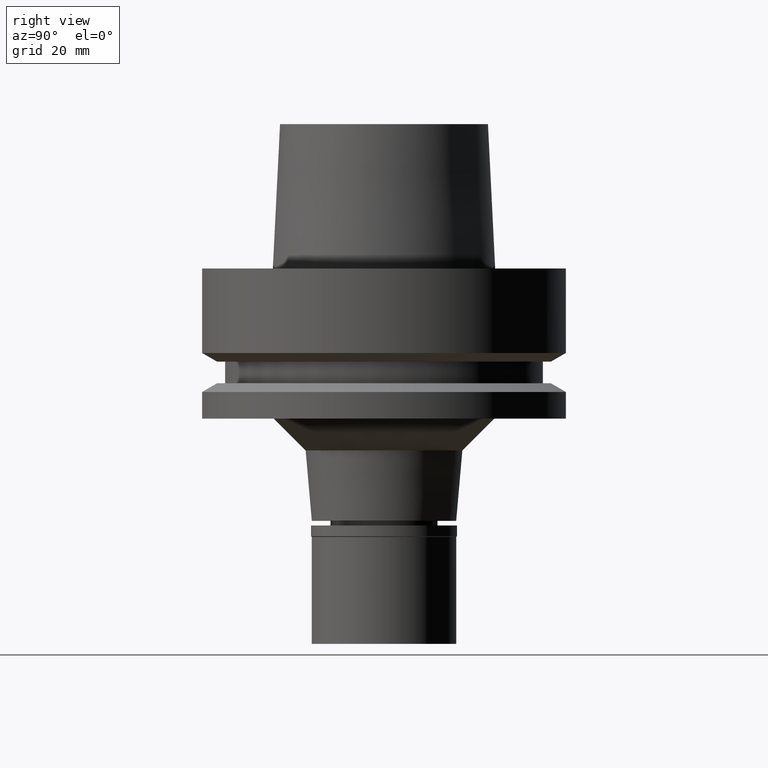
[diagram: clean part render]
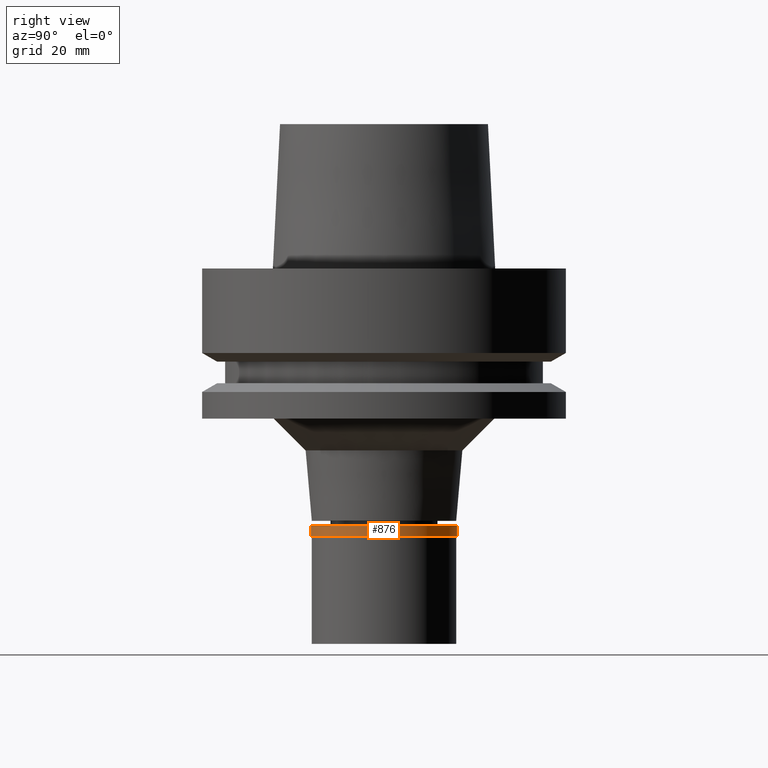
[diagram: same view with one face highlighted and labeled with its STEP entity id]
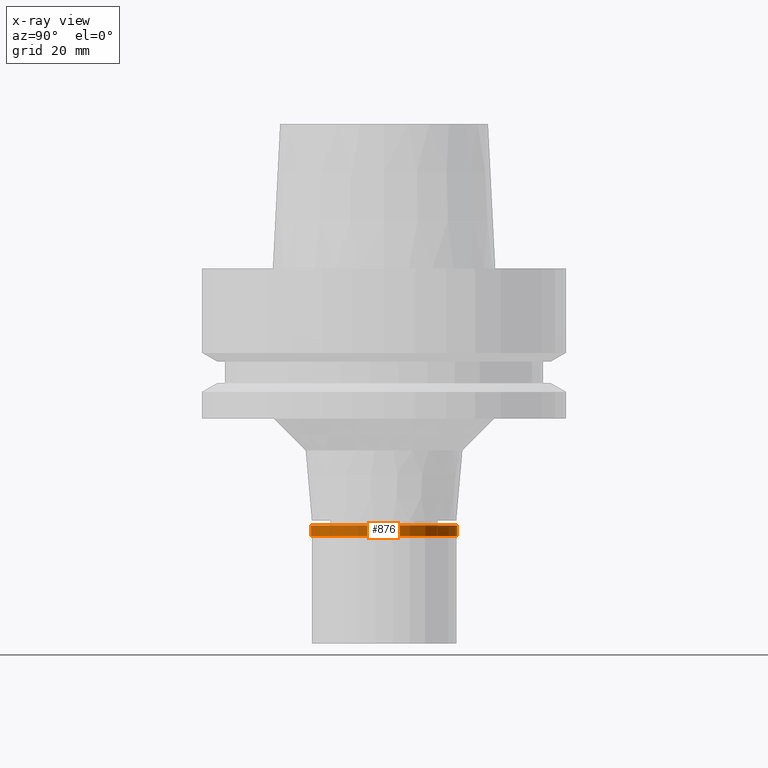
[diagram: x-ray of the same camera — body ghosted, the highlighted face saturated]
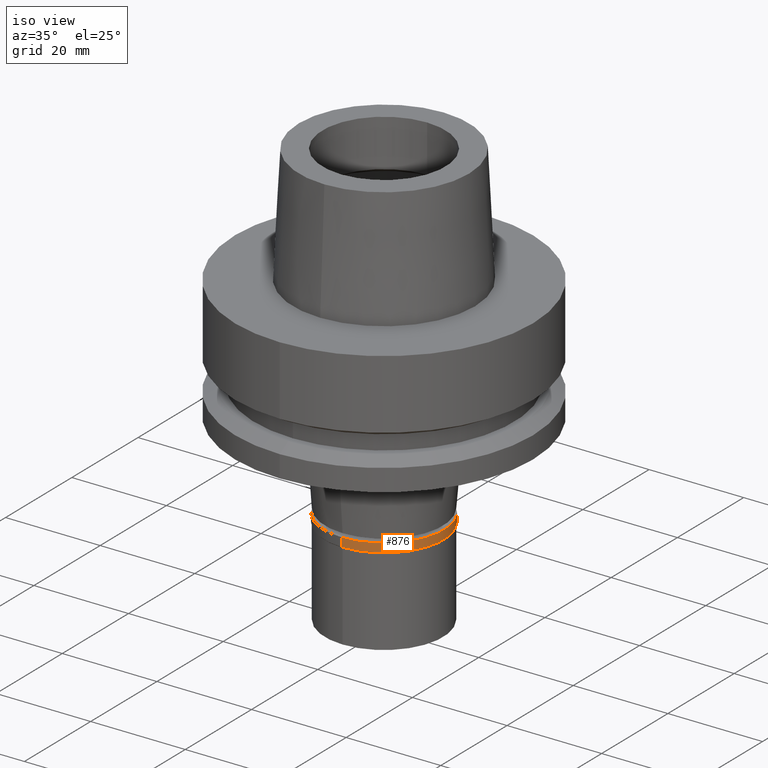
[diagram: same view with one face highlighted and labeled with its STEP entity id]
A machine part, right view. The second image highlights one B-rep face of the part: STEP entity #876.
The next image is the same camera in x-ray: the body ghosted, the highlighted face saturated — about 0% of this face is hidden behind the body in this view.
A second angle (iso view) of the same face is appended — the face is thin or edge-on in the first view.
In plain terms, the highlighted cylindrical surface (partial cylindrical patch) has radius 12.65 mm, axis along (0, 0, -1).
Its self-contained STEP definition (entity closure, byte-faithful):
#70 = ORIENTED_EDGE ( 'NONE', *, *, #793, .T. ) ;
#75 = CARTESIAN_POINT ( 'NONE',  ( 0.0000000000000000000, 12.65000000000000036, 0.0000000000000000000 ) ) ;
#91 = CYLINDRICAL_SURFACE ( 'NONE', #1943, 12.65000000000000036 ) ;
#277 = DIRECTION ( 'NONE',  ( 0.0000000000000000000, 1.000000000000000000, 0.0000000000000000000 ) ) ;
#392 = ORIENTED_EDGE ( 'NONE', *, *, #2136, .T. ) ;
#397 = CARTESIAN_POINT ( 'NONE',  ( 0.0000000000000000000, -12.65000000000000036, -1.850000000000000089 ) ) ;
#478 = DIRECTION ( 'NONE',  ( 0.0000000000000000000, 0.0000000000000000000, -1.000000000000000000 ) ) ;
#701 = CARTESIAN_POINT ( 'NONE',  ( 0.0000000000000000000, 0.0000000000000000000, -1.850000000000000089 ) ) ;
#709 = DIRECTION ( 'NONE',  ( 0.0000000000000000000, -1.000000000000000000, 0.0000000000000000000 ) ) ;
#729 = CIRCLE ( 'NONE', #958, 12.65000000000000036 ) ;
#793 = EDGE_CURVE ( 'NONE', #2095, #1108, #2008, .T. ) ;
#834 = VERTEX_POINT ( 'NONE', #1593 ) ;
#841 = VERTEX_POINT ( 'NONE', #1385 ) ;
#876 = ADVANCED_FACE ( 'NONE', ( #2675 ), #91, .T. ) ;
#925 = DIRECTION ( 'NONE',  ( 0.0000000000000000000, 0.0000000000000000000, -1.000000000000000000 ) ) ;
#958 = AXIS2_PLACEMENT_3D ( 'NONE', #1412, #925, #277 ) ;
#1108 = VERTEX_POINT ( 'NONE', #397 ) ;
#1142 = DIRECTION ( 'NONE',  ( 0.0000000000000000000, -1.000000000000000000, 0.0000000000000000000 ) ) ;
#1255 = ORIENTED_EDGE ( 'NONE', *, *, #2125, .T. ) ;
#1385 = CARTESIAN_POINT ( 'NONE',  ( 0.0000000000000000000, 12.65000000000000036, -1.850000000000000089 ) ) ;
#1412 = CARTESIAN_POINT ( 'NONE',  ( 0.0000000000000000000, 0.0000000000000000000, 0.0000000000000000000 ) ) ;
#1418 = LINE ( 'NONE', #75, #1731 ) ;
#1467 = VECTOR ( 'NONE', #2629, 1000.000000000000000 ) ;
#1593 = CARTESIAN_POINT ( 'NONE',  ( 0.0000000000000000000, 12.65000000000000036, 0.0000000000000000000 ) ) ;
#1616 = CARTESIAN_POINT ( 'NONE',  ( 0.0000000000000000000, -12.65000000000000036, 0.0000000000000000000 ) ) ;
#1731 = VECTOR ( 'NONE', #2424, 1000.000000000000000 ) ;
#1943 = AXIS2_PLACEMENT_3D ( 'NONE', #2181, #478, #1142 ) ;
#1952 = EDGE_LOOP ( 'NONE', ( #1255, #70, #392, #2214 ) ) ;
#1970 = CARTESIAN_POINT ( 'NONE',  ( 0.0000000000000000000, -12.65000000000000036, 0.0000000000000000000 ) ) ;
#2008 = LINE ( 'NONE', #1970, #1467 ) ;
#2095 = VERTEX_POINT ( 'NONE', #1616 ) ;
#2125 = EDGE_CURVE ( 'NONE', #834, #2095, #729, .T. ) ;
#2136 = EDGE_CURVE ( 'NONE', #1108, #841, #2302, .T. ) ;
#2181 = CARTESIAN_POINT ( 'NONE',  ( 0.0000000000000000000, 0.0000000000000000000, 0.0000000000000000000 ) ) ;
#2214 = ORIENTED_EDGE ( 'NONE', *, *, #2294, .F. ) ;
#2294 = EDGE_CURVE ( 'NONE', #834, #841, #1418, .T. ) ;
#2302 = CIRCLE ( 'NONE', #2526, 12.65000000000000036 ) ;
#2424 = DIRECTION ( 'NONE',  ( 0.0000000000000000000, 0.0000000000000000000, -1.000000000000000000 ) ) ;
#2526 = AXIS2_PLACEMENT_3D ( 'NONE', #701, #2636, #709 ) ;
#2629 = DIRECTION ( 'NONE',  ( 0.0000000000000000000, 0.0000000000000000000, -1.000000000000000000 ) ) ;
#2636 = DIRECTION ( 'NONE',  ( 0.0000000000000000000, 0.0000000000000000000, 1.000000000000000000 ) ) ;
#2675 = FACE_OUTER_BOUND ( 'NONE', #1952, .T. ) ;